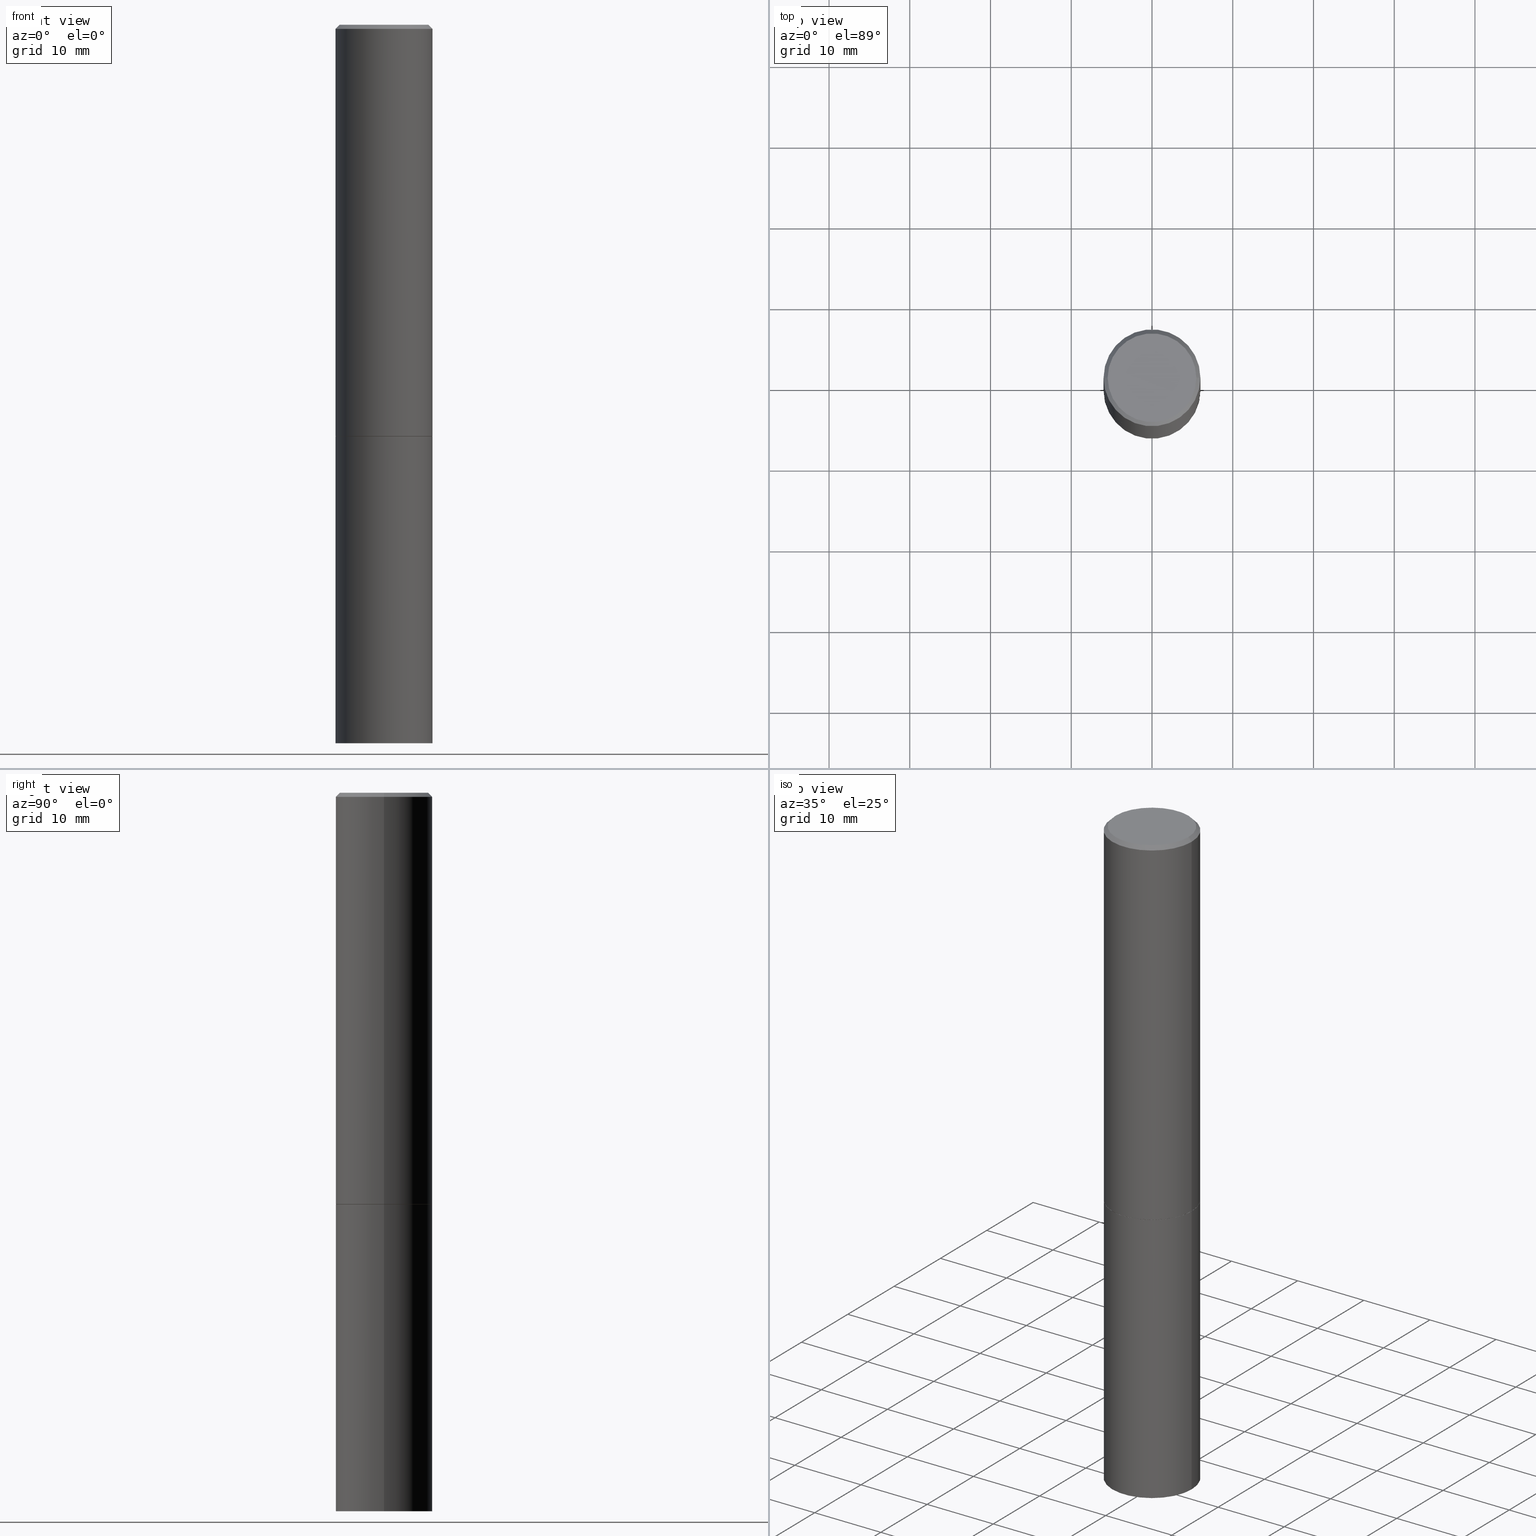
[diagram: canonical four-view strip — front | top / right | iso, engineering-drawing reading convention]
A machine part, canonical four-view strip (front | top / right | iso — engineering-drawing reading convention). The complete STEP part file that produces these views, byte-faithful:
ISO-10303-21;
HEADER;
FILE_DESCRIPTION (( 'STEP AP203' ),
    '1' );
FILE_NAME ('83043.STEP',
    '2024-02-29T22:15:57',
    ( '' ),
    ( '' ),
    'SwSTEP 2.0',
    'SolidWorks 2023',
    '' );
FILE_SCHEMA (( 'CONFIG_CONTROL_DESIGN' ));
ENDSEC;

DATA;
#1 = CIRCLE ( 'NONE', #361, 0.2161999999999997257 ) ;
#2 = EDGE_CURVE ( 'NONE', #129, #241, #288, .T. ) ;
#3 = ORIENTED_EDGE ( 'NONE', *, *, #325, .F. ) ;
#4 = PRODUCT ( '83043', '83043', '', ( #78 ) ) ;
#5 = DIRECTION ( 'NONE',  ( 0.7071067811865232589, -2.468850131082003836E-15, 0.7071067811865715536 ) ) ;
#6 = ORIENTED_EDGE ( 'NONE', *, *, #283, .F. ) ;
#7 = ORIENTED_EDGE ( 'NONE', *, *, #337, .F. ) ;
#8 = CARTESIAN_POINT ( 'NONE',  ( -0.2361999999999999933, -7.943696905785525451E-15, -3.503899999999999793 ) ) ;
#9 = AXIS2_PLACEMENT_3D ( 'NONE', #162, #96, #182 ) ;
#10 = LINE ( 'NONE', #140, #226 ) ;
#11 = EDGE_CURVE ( 'NONE', #285, #363, #110, .T. ) ;
#12 = LINE ( 'NONE', #177, #155 ) ;
#13 = EDGE_LOOP ( 'NONE', ( #307, #340, #153, #344 ) ) ;
#14 = DIRECTION ( 'NONE',  ( -1.000000000000000000, 6.982962677686266711E-15, 0.000000000000000000 ) ) ;
#15 = CIRCLE ( 'NONE', #35, 0.2361999999999999933 ) ;
#16 = PERSON_AND_ORGANIZATION ( #97, #206 ) ;
#17 = DIRECTION ( 'NONE',  ( 1.000000000000000000, -6.982962677686265133E-15, 0.000000000000000000 ) ) ;
#18 = ORIENTED_EDGE ( 'NONE', *, *, #92, .F. ) ;
#19 = SHAPE_DEFINITION_REPRESENTATION ( #312, #194 ) ;
#20 = DIRECTION ( 'NONE',  ( -2.445468806185136597E-29, 3.491481338843145583E-15, 1.000000000000000000 ) ) ;
#21 = ORIENTED_EDGE ( 'NONE', *, *, #2, .F. ) ;
#22 = APPLICATION_PROTOCOL_DEFINITION ( 'international standard', 'config_control_design', 1994, #331 ) ;
#23 = CARTESIAN_POINT ( 'NONE',  ( 4.910012269058516525E-29, -7.010196232129267410E-15, -2.007800000000000029 ) ) ;
#24 = VECTOR ( 'NONE', #69, 39.37007874015748143 ) ;
#25 = SECURITY_CLASSIFICATION_LEVEL ( 'unclassified' ) ;
#26 = DIRECTION ( 'NONE',  ( 2.438088387897960049E-29, -3.491481338843145188E-15, -1.000000000000000000 ) ) ;
#27 = VERTEX_POINT ( 'NONE', #257 ) ;
#28 = ORIENTED_EDGE ( 'NONE', *, *, #364, .F. ) ;
#29 = EDGE_CURVE ( 'NONE', #164, #27, #208, .T. ) ;
#30 = AXIS2_PLACEMENT_3D ( 'NONE', #281, #228, #114 ) ;
#31 = ORIENTED_EDGE ( 'NONE', *, *, #237, .F. ) ;
#32 = ORIENTED_EDGE ( 'NONE', *, *, #33, .F. ) ;
#33 = EDGE_CURVE ( 'NONE', #241, #129, #117, .T. ) ;
#34 = CARTESIAN_POINT ( 'NONE',  ( 0.2351999999999999924, -8.652589053921076343E-15, -2.007800000000000029 ) ) ;
#35 = AXIS2_PLACEMENT_3D ( 'NONE', #244, #185, #17 ) ;
#36 = CYLINDRICAL_SURFACE ( 'NONE', #45, 0.2361999999999998545 ) ;
#37 = ORIENTED_EDGE ( 'NONE', *, *, #337, .T. ) ;
#38 = FACE_OUTER_BOUND ( 'NONE', #277, .T. ) ;
#39 = AXIS2_PLACEMENT_3D ( 'NONE', #142, #236, #229 ) ;
#40 = CARTESIAN_POINT ( 'NONE',  ( 4.910012269058516525E-29, -7.010196232129267410E-15, -2.007800000000000029 ) ) ;
#41 = PERSON_AND_ORGANIZATION ( #97, #206 ) ;
#42 = ORIENTED_EDGE ( 'NONE', *, *, #29, .F. ) ;
#43 = VERTEX_POINT ( 'NONE', #282 ) ;
#44 = DATE_TIME_ROLE ( 'classification_date' ) ;
#45 = AXIS2_PLACEMENT_3D ( 'NONE', #93, #207, #291 ) ;
#46 = CARTESIAN_POINT ( 'NONE',  ( 0.000000000000000000, 0.000000000000000000, 0.000000000000000000 ) ) ;
#47 = CARTESIAN_POINT ( 'NONE',  ( -0.2361999999999999933, -7.943696905785525451E-15, -2.007800000000000029 ) ) ;
#48 = PERSON_AND_ORGANIZATION_ROLE ( 'design_supplier' ) ;
#49 = CARTESIAN_POINT ( 'NONE',  ( -1.043851414335219820E-46, 1.490343170380447200E-32, 4.268512490100411279E-18 ) ) ;
#50 = PERSON_AND_ORGANIZATION ( #97, #206 ) ;
#51 = CARTESIAN_POINT ( 'NONE',  ( 0.2361999999999999933, -1.388317724764199281E-14, -3.503899999999999793 ) ) ;
#52 = LOCAL_TIME ( 17, 15, 57.00000000000000000, #150 ) ;
#53 = CARTESIAN_POINT ( 'NONE',  ( 0.2361999999999999933, -8.656080535259919350E-15, -2.006799999999999695 ) ) ;
#54 = AXIS2_PLACEMENT_3D ( 'NONE', #111, #345, #145 ) ;
#55 = ORIENTED_EDGE ( 'NONE', *, *, #139, .T. ) ;
#56 = EDGE_LOOP ( 'NONE', ( #313, #365 ) ) ;
#57 = ADVANCED_FACE ( 'NONE', ( #38 ), #65, .T. ) ;
#58 = ORIENTED_EDGE ( 'NONE', *, *, #283, .T. ) ;
#59 = VECTOR ( 'NONE', #105, 39.37007874015748143 ) ;
#60 = EDGE_LOOP ( 'NONE', ( #18, #31, #37, #102 ) ) ;
#61 = MANIFOLD_SOLID_BREP ( 'Body-Move/Copy2[2]', #143 ) ;
#62 = FACE_OUTER_BOUND ( 'NONE', #279, .T. ) ;
#63 = APPROVAL ( #123, 'UNSPECIFIED' ) ;
#64 = DIRECTION ( 'NONE',  ( 1.000000000000000000, -6.982962677686265133E-15, 0.000000000000000000 ) ) ;
#65 = CYLINDRICAL_SURFACE ( 'NONE', #39, 0.2361999999999999933 ) ;
#66 = VECTOR ( 'NONE', #230, 39.37007874015748143 ) ;
#67 = EDGE_CURVE ( 'NONE', #43, #354, #286, .T. ) ;
#68 = PERSON_AND_ORGANIZATION ( #97, #206 ) ;
#69 = DIRECTION ( 'NONE',  ( 0.7071067811865467956, -7.319954787623254468E-15, -0.7071067811865482389 ) ) ;
#70 = ORIENTED_EDGE ( 'NONE', *, *, #139, .F. ) ;
#71 = DIRECTION ( 'NONE',  ( 1.000000000000000000, -6.982962677686267499E-15, 4.876217060660161841E-29 ) ) ;
#72 = CALENDAR_DATE ( 2024, 29, 2 ) ;
#73 = DIRECTION ( 'NONE',  ( 2.445468806185136597E-29, -3.491481338843145583E-15, -1.000000000000000000 ) ) ;
#74 = AXIS2_PLACEMENT_3D ( 'NONE', #134, #227, #336 ) ;
#75 = PERSON_AND_ORGANIZATION_ROLE ( 'design_owner' ) ;
#76 = DIRECTION ( 'NONE',  ( -2.445468806185136597E-29, 3.491481338843145583E-15, 1.000000000000000000 ) ) ;
#77 = PRODUCT_RELATED_PRODUCT_CATEGORY ( 'detail', '', ( #4 ) ) ;
#78 = MECHANICAL_CONTEXT ( 'NONE', #331, 'mechanical' ) ;
#79 = DIRECTION ( 'NONE',  ( 1.000000000000000000, -6.982962677686267499E-15, 4.876217060660161841E-29 ) ) ;
#80 = DIRECTION ( 'NONE',  ( -2.445468806185136597E-29, 3.491481338843145583E-15, 1.000000000000000000 ) ) ;
#81 = CC_DESIGN_DATE_AND_TIME_ASSIGNMENT ( #300, #290, ( #250 ) ) ;
#82 = ORIENTED_EDGE ( 'NONE', *, *, #195, .F. ) ;
#83 = FACE_OUTER_BOUND ( 'NONE', #204, .T. ) ;
#84 = ORIENTED_EDGE ( 'NONE', *, *, #237, .T. ) ;
#85 = CARTESIAN_POINT ( 'NONE',  ( 4.910012269058516525E-29, -7.010196232129267410E-15, -2.007800000000000029 ) ) ;
#86 = DIRECTION ( 'NONE',  ( -2.445468806185136877E-29, 3.491481338843145188E-15, 1.000000000000000000 ) ) ;
#87 = CC_DESIGN_PERSON_AND_ORGANIZATION_ASSIGNMENT ( #161, #75, ( #4 ) ) ;
#88 = VECTOR ( 'NONE', #5, 39.37007874015748854 ) ;
#89 = DIRECTION ( 'NONE',  ( -0.7071067811865232589, 7.493145998870265808E-15, 0.7071067811865715536 ) ) ;
#90 = CARTESIAN_POINT ( 'NONE',  ( 4.910012269058516525E-29, -7.010196232129267410E-15, -2.007800000000000029 ) ) ;
#91 = PLANE ( 'NONE',  #136 ) ;
#92 = EDGE_CURVE ( 'NONE', #223, #164, #175, .T. ) ;
#93 = CARTESIAN_POINT ( 'NONE',  ( 0.000000000000000000, 0.000000000000000000, 0.000000000000000000 ) ) ;
#94 = AXIS2_PLACEMENT_3D ( 'NONE', #49, #80, #71 ) ;
#95 = FACE_OUTER_BOUND ( 'NONE', #120, .T. ) ;
#96 = DIRECTION ( 'NONE',  ( 2.445468806185136597E-29, -3.491481338843145583E-15, -1.000000000000000000 ) ) ;
#97 = PERSON ( 'UNSPECIFIED', 'UNSPECIFIED', 'UNSPECIFIED', ('UNSPECIFIED'), ('UNSPECIFIED'), ('UNSPECIFIED') ) ;
#98 = APPROVAL ( #217, 'UNSPECIFIED' ) ;
#99 = FACE_OUTER_BOUND ( 'NONE', #338, .T. ) ;
#100 = CC_DESIGN_APPROVAL ( #63, ( #347 ) ) ;
#101 = CARTESIAN_POINT ( 'NONE',  ( 4.910012269058516525E-29, -7.010196232129267410E-15, -2.007800000000000029 ) ) ;
#102 = ORIENTED_EDGE ( 'NONE', *, *, #325, .T. ) ;
#103 = PERSON_AND_ORGANIZATION ( #97, #206 ) ;
#104 = DIRECTION ( 'NONE',  ( -1.000000000000000000, 6.982962677686265922E-15, -4.876176775795935793E-29 ) ) ;
#105 = DIRECTION ( 'NONE',  ( -2.445468806185136877E-29, 3.491481338843145188E-15, 1.000000000000000000 ) ) ;
#106 = ORIENTED_EDGE ( 'NONE', *, *, #33, .T. ) ;
#107 = CARTESIAN_POINT ( 'NONE',  ( -0.2361999999999997157, 1.579546157692631255E-15, -0.02000000000000003164 ) ) ;
#108 = ORIENTED_EDGE ( 'NONE', *, *, #364, .T. ) ;
#109 = EDGE_LOOP ( 'NONE', ( #146, #70 ) ) ;
#110 = CIRCLE ( 'NONE', #165, 0.2361999999999999933 ) ;
#111 = CARTESIAN_POINT ( 'NONE',  ( 4.890937612370280165E-31, -6.982962677686301470E-17, -0.02000000000000003164 ) ) ;
#112 = ADVANCED_FACE ( 'NONE', ( #62 ), #36, .T. ) ;
#113 = CARTESIAN_POINT ( 'NONE',  ( -0.2361999999999999933, 1.678301941865356591E-15, -1.161852468318208757E-29 ) ) ;
#114 = DIRECTION ( 'NONE',  ( -1.000000000000000000, 6.982962677686265922E-15, -4.876176775795935793E-29 ) ) ;
#115 = PRODUCT_DEFINITION_FORMATION_WITH_SPECIFIED_SOURCE ( 'ANY', '', #4, .NOT_KNOWN. ) ;
#116 = ORIENTED_EDGE ( 'NONE', *, *, #232, .T. ) ;
#117 = CIRCLE ( 'NONE', #255, 0.2361999999999999933 ) ;
#118 = LENGTH_MEASURE_WITH_UNIT ( LENGTH_MEASURE( 0.02539999999999999897 ), #203 );
#119 = EDGE_CURVE ( 'NONE', #129, #219, #197, .T. ) ;
#120 = EDGE_LOOP ( 'NONE', ( #32, #21 ) ) ;
#121 = ORIENTED_EDGE ( 'NONE', *, *, #287, .F. ) ;
#122 = ORIENTED_EDGE ( 'NONE', *, *, #11, .T. ) ;
#123 = APPROVAL_STATUS ( 'not_yet_approved' ) ;
#124 = PERSON_AND_ORGANIZATION ( #97, #206 ) ;
#125 = FACE_OUTER_BOUND ( 'NONE', #343, .T. ) ;
#126 = APPLICATION_CONTEXT ( 'configuration controlled 3d designs of mechanical parts and assemblies' ) ;
#127 = EDGE_CURVE ( 'NONE', #354, #363, #12, .T. ) ;
#128 = CARTESIAN_POINT ( 'NONE',  ( 1.649375784469545040E-15, 0.2361999999999929989, -2.007800000000000473 ) ) ;
#129 = VERTEX_POINT ( 'NONE', #8 ) ;
#130 = DATE_AND_TIME ( #147, #193 ) ;
#131 = DIRECTION ( 'NONE',  ( 1.000000000000000000, -6.982962677686264344E-15, 0.000000000000000000 ) ) ;
#132 = FACE_OUTER_BOUND ( 'NONE', #322, .T. ) ;
#133 = ADVANCED_FACE ( 'NONE', ( #234 ), #91, .F. ) ;
#134 = CARTESIAN_POINT ( 'NONE',  ( 4.890937612370280165E-31, -6.982962677686301470E-17, -0.02000000000000003164 ) ) ;
#135 = AXIS2_PLACEMENT_3D ( 'NONE', #128, #26, #104 ) ;
#136 = AXIS2_PLACEMENT_3D ( 'NONE', #40, #200, #233 ) ;
#137 = CC_DESIGN_PERSON_AND_ORGANIZATION_ASSIGNMENT ( #41, #178, ( #347 ) ) ;
#138 = CC_DESIGN_APPROVAL ( #202, ( #115 ) ) ;
#139 = EDGE_CURVE ( 'NONE', #354, #43, #329, .T. ) ;
#140 = CARTESIAN_POINT ( 'NONE',  ( 0.2361999999999998545, -1.649375784469495145E-15, 1.151752954442999387E-29 ) ) ;
#141 = DIRECTION ( 'NONE',  ( 1.000000000000000000, -6.982962677686265133E-15, 0.000000000000000000 ) ) ;
#142 = CARTESIAN_POINT ( 'NONE',  ( 0.000000000000000000, 0.000000000000000000, 0.000000000000000000 ) ) ;
#143 = CLOSED_SHELL ( 'NONE', ( #167, #154, #261, #256, #112, #275, #133, #350 ) ) ;
#144 = CIRCLE ( 'NONE', #94, 0.2161999999999997257 ) ;
#145 = DIRECTION ( 'NONE',  ( 1.000000000000000000, -6.982962677686266711E-15, 0.000000000000000000 ) ) ;
#146 = ORIENTED_EDGE ( 'NONE', *, *, #67, .F. ) ;
#147 = CALENDAR_DATE ( 2024, 29, 2 ) ;
#148 = ORIENTED_EDGE ( 'NONE', *, *, #225, .F. ) ;
#149 = DIMENSIONAL_EXPONENTS ( 1.000000000000000000, 0.000000000000000000, 0.000000000000000000, 0.000000000000000000, 0.000000000000000000, 0.000000000000000000, 0.000000000000000000 ) ;
#150 = COORDINATED_UNIVERSAL_TIME_OFFSET ( 5, 0, .BEHIND. ) ;
#151 = DIRECTION ( 'NONE',  ( -2.445468806185136597E-29, 3.491481338843145583E-15, 1.000000000000000000 ) ) ;
#152 = CIRCLE ( 'NONE', #335, 0.2361999999999999933 ) ;
#153 = ORIENTED_EDGE ( 'NONE', *, *, #11, .F. ) ;
#154 = ADVANCED_FACE ( 'NONE', ( #125 ), #246, .T. ) ;
#155 = VECTOR ( 'NONE', #89, 39.37007874015748854 ) ;
#156 = DATE_AND_TIME ( #159, #258 ) ;
#157 = CARTESIAN_POINT ( 'NONE',  ( 0.2361999999999999933, -8.659572016598763935E-15, -2.007800000000000029 ) ) ;
#158 = ORIENTED_EDGE ( 'NONE', *, *, #333, .F. ) ;
#159 = CALENDAR_DATE ( 2024, 29, 2 ) ;
#160 = CARTESIAN_POINT ( 'NONE',  ( 4.910012269058516525E-29, -7.010196232129267410E-15, -2.007800000000000029 ) ) ;
#161 = PERSON_AND_ORGANIZATION ( #97, #206 ) ;
#162 = CARTESIAN_POINT ( 'NONE',  ( 4.890937612370280165E-31, -6.982962677686301470E-17, -0.02000000000000003164 ) ) ;
#163 = AXIS2_PLACEMENT_3D ( 'NONE', #353, #240, #321 ) ;
#164 = VERTEX_POINT ( 'NONE', #268 ) ;
#165 = AXIS2_PLACEMENT_3D ( 'NONE', #173, #262, #64 ) ;
#166 = DIRECTION ( 'NONE',  ( -2.445468806185136597E-29, 3.491481338843145583E-15, 1.000000000000000000 ) ) ;
#167 = ADVANCED_FACE ( 'NONE', ( #326 ), #199, .T. ) ;
#168 = APPROVAL_PERSON_ORGANIZATION ( #245, #63, #239 ) ;
#169 = AXIS2_PLACEMENT_3D ( 'NONE', #306, #299, #211 ) ;
#170 = UNCERTAINTY_MEASURE_WITH_UNIT (LENGTH_MEASURE( 1.000000000000000082E-05 ), #205, 'distance_accuracy_value', 'NONE');
#171 =( NAMED_UNIT ( * ) SI_UNIT ( $, .STERADIAN. ) SOLID_ANGLE_UNIT ( ) );
#172 = CARTESIAN_POINT ( 'NONE',  ( 8.568678149992099474E-29, -1.223380146317249786E-14, -3.503899999999999793 ) ) ;
#173 = CARTESIAN_POINT ( 'NONE',  ( 4.907566800252331482E-29, -7.006704750790423614E-15, -2.006799999999999695 ) ) ;
#174 = ORIENTED_EDGE ( 'NONE', *, *, #92, .T. ) ;
#175 = LINE ( 'NONE', #260, #24 ) ;
#176 = AXIS2_PLACEMENT_3D ( 'NONE', #85, #320, #289 ) ;
#177 = CARTESIAN_POINT ( 'NONE',  ( -0.2351999999999999924, -5.338999717621511235E-15, -2.007800000000000029 ) ) ;
#178 = PERSON_AND_ORGANIZATION_ROLE ( 'classification_officer' ) ;
#179 = ORIENTED_EDGE ( 'NONE', *, *, #195, .T. ) ;
#180 = APPROVAL_DATE_TIME ( #271, #202 ) ;
#181 = FACE_OUTER_BOUND ( 'NONE', #216, .T. ) ;
#182 = DIRECTION ( 'NONE',  ( -1.000000000000000000, 6.982962677686266711E-15, 0.000000000000000000 ) ) ;
#183 = AXIS2_PLACEMENT_3D ( 'NONE', #23, #296, #131 ) ;
#184 = COORDINATED_UNIVERSAL_TIME_OFFSET ( 5, 0, .BEHIND. ) ;
#185 = DIRECTION ( 'NONE',  ( -2.445468806185136597E-29, 3.491481338843145583E-15, 1.000000000000000000 ) ) ;
#186 = ADVANCED_FACE ( 'NONE', ( #95 ), #266, .T. ) ;
#187 = PERSON_AND_ORGANIZATION_ROLE ( 'creator' ) ;
#188 = CARTESIAN_POINT ( 'NONE',  ( -0.2361999999999998545, 1.678301941865355605E-15, -1.161852468318208056E-29 ) ) ;
#189 = DIRECTION ( 'NONE',  ( -2.445468806185136877E-29, 3.491481338843145188E-15, 1.000000000000000000 ) ) ;
#190 = LOCAL_TIME ( 17, 15, 57.00000000000000000, #184 ) ;
#191 = CC_DESIGN_DATE_AND_TIME_ASSIGNMENT ( #130, #44, ( #347 ) ) ;
#192 = ORIENTED_EDGE ( 'NONE', *, *, #119, .F. ) ;
#193 = LOCAL_TIME ( 17, 15, 57.00000000000000000, #269 ) ;
#194 = ADVANCED_BREP_SHAPE_REPRESENTATION ( '83043', ( #304, #61, #231 ), #305 ) ;
#195 = EDGE_CURVE ( 'NONE', #223, #263, #144, .T. ) ;
#196 = CARTESIAN_POINT ( 'NONE',  ( -0.2362000000000000210, -1.859965246918283512E-15, -2.006799999999999695 ) ) ;
#197 = LINE ( 'NONE', #113, #66 ) ;
#198 = VECTOR ( 'NONE', #189, 39.37007874015748143 ) ;
#199 = CONICAL_SURFACE ( 'NONE', #252, 0.2351999999999999924, 0.7853981633974141952 ) ;
#200 = DIRECTION ( 'NONE',  ( -2.438088387897960049E-29, 3.491481338843145188E-15, 1.000000000000000000 ) ) ;
#201 = DIRECTION ( 'NONE',  ( -2.445468806185136597E-29, 3.491481338843145583E-15, 1.000000000000000000 ) ) ;
#202 = APPROVAL ( #330, 'UNSPECIFIED' ) ;
#203 =( LENGTH_UNIT ( ) NAMED_UNIT ( * ) SI_UNIT ( $, .METRE. ) );
#204 = EDGE_LOOP ( 'NONE', ( #84, #179 ) ) ;
#205 =( CONVERSION_BASED_UNIT ( 'INCH', #118 ) LENGTH_UNIT ( ) NAMED_UNIT ( #149 ) );
#206 = ORGANIZATION ( 'UNSPECIFIED', 'UNSPECIFIED', '' ) ;
#207 = DIRECTION ( 'NONE',  ( -2.445468806185136597E-29, 3.491481338843145583E-15, 1.000000000000000000 ) ) ;
#208 = CIRCLE ( 'NONE', #54, 0.2361999999999997157 ) ;
#209 = ADVANCED_FACE ( 'NONE', ( #181 ), #293, .T. ) ;
#210 = DATE_AND_TIME ( #348, #52 ) ;
#211 = DIRECTION ( 'NONE',  ( 1.000000000000000000, -6.982962677686266711E-15, 4.876176775795935793E-29 ) ) ;
#212 = DIRECTION ( 'NONE',  ( 1.000000000000000000, -6.982962677686269077E-15, 0.000000000000000000 ) ) ;
#213 = DIRECTION ( 'NONE',  ( 1.000000000000000000, -6.982962677686264344E-15, 0.000000000000000000 ) ) ;
#214 = COORDINATED_UNIVERSAL_TIME_OFFSET ( 5, 0, .BEHIND. ) ;
#215 = DIRECTION ( 'NONE',  ( -2.445468806185136597E-29, 3.491481338843145583E-15, 1.000000000000000000 ) ) ;
#216 = EDGE_LOOP ( 'NONE', ( #106, #346, #148, #158 ) ) ;
#217 = APPROVAL_STATUS ( 'not_yet_approved' ) ;
#218 = CARTESIAN_POINT ( 'NONE',  ( -0.2161999999999997257, 1.544631344304200197E-15, 4.268512490089730842E-18 ) ) ;
#219 = VERTEX_POINT ( 'NONE', #47 ) ;
#220 = PLANE ( 'NONE',  #30 ) ;
#221 = CIRCLE ( 'NONE', #251, 0.2361999999999999933 ) ;
#222 = CC_DESIGN_PERSON_AND_ORGANIZATION_ASSIGNMENT ( #16, #187, ( #250 ) ) ;
#223 = VERTEX_POINT ( 'NONE', #334 ) ;
#224 = ORIENTED_EDGE ( 'NONE', *, *, #29, .T. ) ;
#225 = EDGE_CURVE ( 'NONE', #294, #219, #152, .T. ) ;
#226 = VECTOR ( 'NONE', #86, 39.37007874015748143 ) ;
#227 = DIRECTION ( 'NONE',  ( -2.445468806185136597E-29, 3.491481338843145583E-15, 1.000000000000000000 ) ) ;
#228 = DIRECTION ( 'NONE',  ( 2.438088387897960049E-29, -3.491481338843145188E-15, -1.000000000000000000 ) ) ;
#229 = DIRECTION ( 'NONE',  ( 1.000000000000000000, -6.982962677686266711E-15, 4.876176775795936353E-29 ) ) ;
#230 = DIRECTION ( 'NONE',  ( -2.445468806185136877E-29, 3.491481338843145188E-15, 1.000000000000000000 ) ) ;
#231 = AXIS2_PLACEMENT_3D ( 'NONE', #46, #292, #352 ) ;
#232 = EDGE_CURVE ( 'NONE', #363, #285, #15, .T. ) ;
#233 = DIRECTION ( 'NONE',  ( 1.000000000000000000, -6.982962677686265922E-15, 4.876176775795935793E-29 ) ) ;
#234 = FACE_OUTER_BOUND ( 'NONE', #109, .T. ) ;
#235 = LINE ( 'NONE', #34, #88 ) ;
#236 = DIRECTION ( 'NONE',  ( -2.445468806185136597E-29, 3.491481338843145583E-15, 1.000000000000000000 ) ) ;
#237 = EDGE_CURVE ( 'NONE', #263, #223, #1, .T. ) ;
#238 = CONICAL_SURFACE ( 'NONE', #183, 0.2351999999999999924, 0.7853981633974141952 ) ;
#239 = APPROVAL_ROLE ( '' ) ;
#240 = DIRECTION ( 'NONE',  ( 2.438088387897960049E-29, -3.491481338843145188E-15, -1.000000000000000000 ) ) ;
#241 = VERTEX_POINT ( 'NONE', #51 ) ;
#242 = APPLICATION_PROTOCOL_DEFINITION ( 'international standard', 'config_control_design', 1994, #126 ) ;
#243 = CARTESIAN_POINT ( 'NONE',  ( -1.043851414335219820E-46, 1.490343170380447200E-32, 4.268512490100411279E-18 ) ) ;
#244 = CARTESIAN_POINT ( 'NONE',  ( 4.907566800252331482E-29, -7.006704750790423614E-15, -2.006799999999999695 ) ) ;
#245 = PERSON_AND_ORGANIZATION ( #97, #206 ) ;
#246 = CYLINDRICAL_SURFACE ( 'NONE', #169, 0.2361999999999998545 ) ;
#247 = CC_DESIGN_SECURITY_CLASSIFICATION ( #347, ( #115 ) ) ;
#248 = COORDINATED_UNIVERSAL_TIME_OFFSET ( 5, 0, .BEHIND. ) ;
#249 = LINE ( 'NONE', #188, #198 ) ;
#250 = PRODUCT_DEFINITION ( 'UNKNOWN', '', #115, #324 ) ;
#251 = AXIS2_PLACEMENT_3D ( 'NONE', #360, #20, #349 ) ;
#252 = AXIS2_PLACEMENT_3D ( 'NONE', #101, #151, #213 ) ;
#253 = ORIENTED_EDGE ( 'NONE', *, *, #232, .F. ) ;
#254 = VECTOR ( 'NONE', #308, 39.37007874015748143 ) ;
#255 = AXIS2_PLACEMENT_3D ( 'NONE', #342, #284, #141 ) ;
#256 = ADVANCED_FACE ( 'NONE', ( #351 ), #264, .T. ) ;
#257 = CARTESIAN_POINT ( 'NONE',  ( -0.2361999999999997157, 1.579546157692631255E-15, -0.02000000000000003164 ) ) ;
#258 = LOCAL_TIME ( 17, 15, 57.00000000000000000, #248 ) ;
#259 = CARTESIAN_POINT ( 'NONE',  ( -0.2351999999999999924, -5.333701263273288833E-15, -2.007800000000000029 ) ) ;
#260 = CARTESIAN_POINT ( 'NONE',  ( 0.2361999999999997157, -1.690279253850496996E-15, -0.02000000000000003164 ) ) ;
#261 = ADVANCED_FACE ( 'NONE', ( #132 ), #274, .T. ) ;
#262 = DIRECTION ( 'NONE',  ( -2.445468806185136597E-29, 3.491481338843145583E-15, 1.000000000000000000 ) ) ;
#263 = VERTEX_POINT ( 'NONE', #218 ) ;
#264 = CONICAL_SURFACE ( 'NONE', #339, 0.2361999999999997157, 0.7853981633974472798 ) ;
#265 = APPROVAL_ROLE ( '' ) ;
#266 = PLANE ( 'NONE',  #163 ) ;
#267 = APPROVAL_ROLE ( '' ) ;
#268 = CARTESIAN_POINT ( 'NONE',  ( 0.2361999999999997157, -1.690279253850496996E-15, -0.02000000000000003164 ) ) ;
#269 = COORDINATED_UNIVERSAL_TIME_OFFSET ( 5, 0, .BEHIND. ) ;
#270 = CARTESIAN_POINT ( 'NONE',  ( 4.890937612370280165E-31, -6.982962677686301470E-17, -0.02000000000000003164 ) ) ;
#271 = DATE_AND_TIME ( #72, #190 ) ;
#272 = AXIS2_PLACEMENT_3D ( 'NONE', #90, #201, #316 ) ;
#273 = PLANE ( 'NONE',  #135 ) ;
#274 = CONICAL_SURFACE ( 'NONE', #9, 0.2361999999999997157, 0.7853981633974472798 ) ;
#275 = ADVANCED_FACE ( 'NONE', ( #99 ), #238, .T. ) ;
#276 = CARTESIAN_POINT ( 'NONE',  ( 0.2361999999999999933, -1.649375784469496131E-15, 1.151752954443000088E-29 ) ) ;
#277 = EDGE_LOOP ( 'NONE', ( #192, #302, #366, #121 ) ) ;
#278 = CC_DESIGN_APPROVAL ( #98, ( #250 ) ) ;
#279 = EDGE_LOOP ( 'NONE', ( #6, #116, #108, #3 ) ) ;
#280 = LINE ( 'NONE', #107, #254 ) ;
#281 = CARTESIAN_POINT ( 'NONE',  ( 1.509716530915768746E-15, 0.2161999999999997257, -7.527240092128370190E-16 ) ) ;
#282 = CARTESIAN_POINT ( 'NONE',  ( 0.2351999999999999924, -8.652589053921076343E-15, -2.007800000000000029 ) ) ;
#283 = EDGE_CURVE ( 'NONE', #363, #27, #249, .T. ) ;
#284 = DIRECTION ( 'NONE',  ( -2.445468806185136597E-29, 3.491481338843145583E-15, 1.000000000000000000 ) ) ;
#285 = VERTEX_POINT ( 'NONE', #53 ) ;
#286 = CIRCLE ( 'NONE', #176, 0.2351999999999999924 ) ;
#287 = EDGE_CURVE ( 'NONE', #219, #294, #221, .T. ) ;
#288 = CIRCLE ( 'NONE', #362, 0.2361999999999999933 ) ;
#289 = DIRECTION ( 'NONE',  ( 1.000000000000000000, -6.982962677686264344E-15, 0.000000000000000000 ) ) ;
#290 = DATE_TIME_ROLE ( 'creation_date' ) ;
#291 = DIRECTION ( 'NONE',  ( 1.000000000000000000, -6.982962677686266711E-15, 4.876176775795935793E-29 ) ) ;
#292 = DIRECTION ( 'NONE',  ( 0.000000000000000000, 0.000000000000000000, 1.000000000000000000 ) ) ;
#293 = CYLINDRICAL_SURFACE ( 'NONE', #318, 0.2361999999999999933 ) ;
#294 = VERTEX_POINT ( 'NONE', #157 ) ;
#295 = APPROVAL_PERSON_ORGANIZATION ( #124, #98, #265 ) ;
#296 = DIRECTION ( 'NONE',  ( -2.445468806185136597E-29, 3.491481338843145583E-15, 1.000000000000000000 ) ) ;
#297 = CC_DESIGN_PERSON_AND_ORGANIZATION_ASSIGNMENT ( #50, #298, ( #115 ) ) ;
#298 = PERSON_AND_ORGANIZATION_ROLE ( 'creator' ) ;
#299 = DIRECTION ( 'NONE',  ( -2.445468806185136597E-29, 3.491481338843145583E-15, 1.000000000000000000 ) ) ;
#300 = DATE_AND_TIME ( #359, #356 ) ;
#301 = FACE_OUTER_BOUND ( 'NONE', #56, .T. ) ;
#302 = ORIENTED_EDGE ( 'NONE', *, *, #2, .T. ) ;
#303 = CC_DESIGN_PERSON_AND_ORGANIZATION_ASSIGNMENT ( #103, #48, ( #115 ) ) ;
#304 = MANIFOLD_SOLID_BREP ( 'Body-Move/Copy2[1]', #355 ) ;
#305 =( GEOMETRIC_REPRESENTATION_CONTEXT ( 3 ) GLOBAL_UNCERTAINTY_ASSIGNED_CONTEXT ( ( #170 ) ) GLOBAL_UNIT_ASSIGNED_CONTEXT ( ( #205, #319, #171 ) ) REPRESENTATION_CONTEXT ( 'NONE', 'WORKASPACE' ) );
#306 = CARTESIAN_POINT ( 'NONE',  ( 0.000000000000000000, 0.000000000000000000, 0.000000000000000000 ) ) ;
#307 = ORIENTED_EDGE ( 'NONE', *, *, #67, .T. ) ;
#308 = DIRECTION ( 'NONE',  ( -0.7071067811865467956, 2.468850131082249172E-15, -0.7071067811865482389 ) ) ;
#309 = ORIENTED_EDGE ( 'NONE', *, *, #358, .T. ) ;
#310 = LINE ( 'NONE', #276, #59 ) ;
#311 = ADVANCED_FACE ( 'NONE', ( #301 ), #273, .F. ) ;
#312 = PRODUCT_DEFINITION_SHAPE ( 'NONE', 'NONE',  #250 ) ;
#313 = ORIENTED_EDGE ( 'NONE', *, *, #225, .T. ) ;
#314 = CIRCLE ( 'NONE', #74, 0.2361999999999997157 ) ;
#315 = DIRECTION ( 'NONE',  ( -2.445468806185136597E-29, 3.491481338843145583E-15, 1.000000000000000000 ) ) ;
#316 = DIRECTION ( 'NONE',  ( 1.000000000000000000, -6.982962677686264344E-15, 0.000000000000000000 ) ) ;
#317 = DIRECTION ( 'NONE',  ( 1.000000000000000000, -6.982962677686265133E-15, 0.000000000000000000 ) ) ;
#318 = AXIS2_PLACEMENT_3D ( 'NONE', #328, #215, #332 ) ;
#319 =( NAMED_UNIT ( * ) PLANE_ANGLE_UNIT ( ) SI_UNIT ( $, .RADIAN. ) );
#320 = DIRECTION ( 'NONE',  ( -2.445468806185136597E-29, 3.491481338843145583E-15, 1.000000000000000000 ) ) ;
#321 = DIRECTION ( 'NONE',  ( -1.000000000000000000, 6.982962677686265922E-15, -4.876176775795935793E-29 ) ) ;
#322 = EDGE_LOOP ( 'NONE', ( #82, #174, #224, #7 ) ) ;
#323 = APPROVAL_DATE_TIME ( #156, #98 ) ;
#324 = DESIGN_CONTEXT ( 'detailed design', #126, 'design' ) ;
#325 = EDGE_CURVE ( 'NONE', #27, #164, #314, .T. ) ;
#326 = FACE_OUTER_BOUND ( 'NONE', #13, .T. ) ;
#327 = APPROVAL_PERSON_ORGANIZATION ( #68, #202, #267 ) ;
#328 = CARTESIAN_POINT ( 'NONE',  ( 0.000000000000000000, 0.000000000000000000, 0.000000000000000000 ) ) ;
#329 = CIRCLE ( 'NONE', #272, 0.2351999999999999924 ) ;
#330 = APPROVAL_STATUS ( 'not_yet_approved' ) ;
#331 = APPLICATION_CONTEXT ( 'configuration controlled 3d designs of mechanical parts and assemblies' ) ;
#332 = DIRECTION ( 'NONE',  ( 1.000000000000000000, -6.982962677686266711E-15, 4.876176775795936353E-29 ) ) ;
#333 = EDGE_CURVE ( 'NONE', #241, #294, #310, .T. ) ;
#334 = CARTESIAN_POINT ( 'NONE',  ( 0.2161999999999997257, -1.586759460484350016E-15, 4.268512490111238857E-18 ) ) ;
#335 = AXIS2_PLACEMENT_3D ( 'NONE', #160, #166, #212 ) ;
#336 = DIRECTION ( 'NONE',  ( 1.000000000000000000, -6.982962677686266711E-15, 0.000000000000000000 ) ) ;
#337 = EDGE_CURVE ( 'NONE', #263, #27, #280, .T. ) ;
#338 = EDGE_LOOP ( 'NONE', ( #341, #55, #309, #253 ) ) ;
#339 = AXIS2_PLACEMENT_3D ( 'NONE', #270, #73, #14 ) ;
#340 = ORIENTED_EDGE ( 'NONE', *, *, #127, .T. ) ;
#341 = ORIENTED_EDGE ( 'NONE', *, *, #127, .F. ) ;
#342 = CARTESIAN_POINT ( 'NONE',  ( 8.568678149992099474E-29, -1.223380146317249786E-14, -3.503899999999999793 ) ) ;
#343 = EDGE_LOOP ( 'NONE', ( #122, #58, #42, #28 ) ) ;
#344 = ORIENTED_EDGE ( 'NONE', *, *, #358, .F. ) ;
#345 = DIRECTION ( 'NONE',  ( -2.445468806185136597E-29, 3.491481338843145583E-15, 1.000000000000000000 ) ) ;
#346 = ORIENTED_EDGE ( 'NONE', *, *, #119, .T. ) ;
#347 = SECURITY_CLASSIFICATION ( '', '', #25 ) ;
#348 = CALENDAR_DATE ( 2024, 29, 2 ) ;
#349 = DIRECTION ( 'NONE',  ( 1.000000000000000000, -6.982962677686269077E-15, 0.000000000000000000 ) ) ;
#350 = ADVANCED_FACE ( 'NONE', ( #83 ), #220, .F. ) ;
#351 = FACE_OUTER_BOUND ( 'NONE', #60, .T. ) ;
#352 = DIRECTION ( 'NONE',  ( 1.000000000000000000, 0.000000000000000000, 0.000000000000000000 ) ) ;
#353 = CARTESIAN_POINT ( 'NONE',  ( 1.649375784469581525E-15, 0.2361999999999877808, -3.503900000000000681 ) ) ;
#354 = VERTEX_POINT ( 'NONE', #259 ) ;
#355 = CLOSED_SHELL ( 'NONE', ( #209, #186, #311, #57 ) ) ;
#356 = LOCAL_TIME ( 17, 15, 57.00000000000000000, #214 ) ;
#357 = APPROVAL_DATE_TIME ( #210, #63 ) ;
#358 = EDGE_CURVE ( 'NONE', #43, #285, #235, .T. ) ;
#359 = CALENDAR_DATE ( 2024, 29, 2 ) ;
#360 = CARTESIAN_POINT ( 'NONE',  ( 4.910012269058516525E-29, -7.010196232129267410E-15, -2.007800000000000029 ) ) ;
#361 = AXIS2_PLACEMENT_3D ( 'NONE', #243, #76, #79 ) ;
#362 = AXIS2_PLACEMENT_3D ( 'NONE', #172, #315, #317 ) ;
#363 = VERTEX_POINT ( 'NONE', #196 ) ;
#364 = EDGE_CURVE ( 'NONE', #285, #164, #10, .T. ) ;
#365 = ORIENTED_EDGE ( 'NONE', *, *, #287, .T. ) ;
#366 = ORIENTED_EDGE ( 'NONE', *, *, #333, .T. ) ;
ENDSEC;
END-ISO-10303-21;
